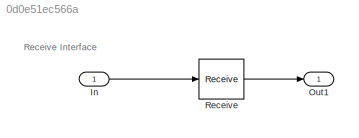
MODEL slx_0d0e51ec566a
KIND model
CONFIG AbsTol = auto
CONFIG EnableMultiTasking = off
CONFIG FixedStep = 0.1
CONFIG MaxStep = auto
CONFIG MinStep = auto
CONFIG RelTol = 1e-3
CONFIG SampleTimeConstraint = Unconstrained
CONFIG SolverName = FixedStepAuto
CONFIG StartTime = 0.0
CONFIG StopTime = 10.0
BLOCK [Inport] In
  OutputPortMessageModes = m
BLOCK [Outport] Out1
BLOCK [Receive] Receive
  InitialValue = 0
  InputPortMap = u0
  InputPortMessageModes = m
  OutputPortMap = o1
  UseInternalQueue = off
ANNOTATION (root): Receive Interface
LINE In:1 -> Receive:1
LINE Receive:1 -> Out1:1
